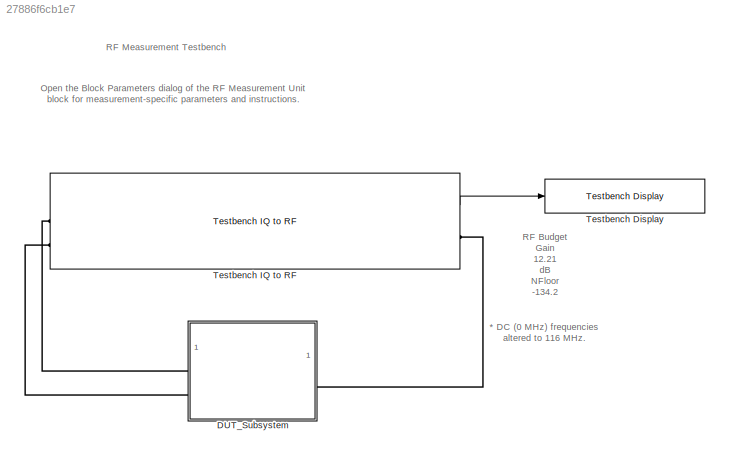
MODEL slx_27886f6cb1e7
KIND model
CONFIG AbsTol = auto
CONFIG EnableMultiTasking = off
CONFIG FixedStep = auto
CONFIG MaxStep = auto
CONFIG MinStep = auto
CONFIG RelTol = 1e-3
CONFIG SampleTimeConstraint = Unconstrained
CONFIG SolverName = FixedStepDiscrete
CONFIG StartTime = 0.0
CONFIG StopTime = inf
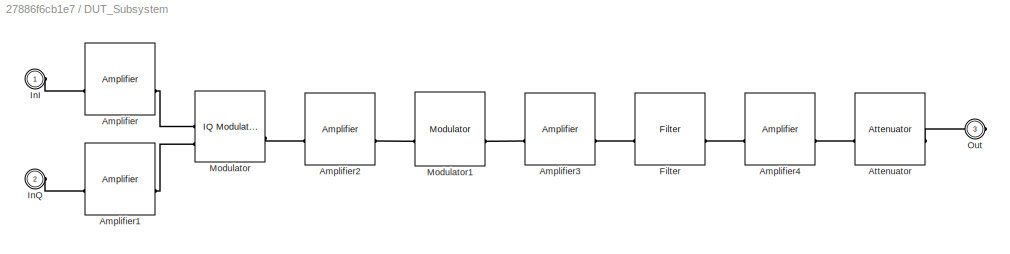
BLOCK [SubSystem] DUT_Subsystem
  LibrarySourceBlock = rfTestbenches_lib/simrfTestbenchIQtoRF/DUT_Subsystem
BLOCK [Reference] DUT_Subsystem/Amplifier  REF=simrfV2elements/Amplifier
  SourceBlock = simrfV2elements/Amplifier
  SourceType = Amplifier
  UserDataPersistent = on
BLOCK [Reference] DUT_Subsystem/Amplifier1  REF=simrfV2elements/Amplifier
  SourceBlock = simrfV2elements/Amplifier
  SourceType = Amplifier
  UserDataPersistent = on
BLOCK [Reference] DUT_Subsystem/Amplifier2  REF=simrfV2elements/Amplifier
  SourceBlock = simrfV2elements/Amplifier
  SourceType = Amplifier
  UserDataPersistent = on
BLOCK [Reference] DUT_Subsystem/Amplifier3  REF=simrfV2elements/Amplifier
  SourceBlock = simrfV2elements/Amplifier
  SourceType = Amplifier
  UserDataPersistent = on
BLOCK [Reference] DUT_Subsystem/Amplifier4  REF=simrfV2elements/Amplifier
  SourceBlock = simrfV2elements/Amplifier
  SourceType = Amplifier
  UserDataPersistent = on
BLOCK [Reference] DUT_Subsystem/Attenuator  REF=simrfV2elements/Attenuator
  SourceBlock = simrfV2elements/Attenuator
  SourceType = Attenuator
BLOCK [Reference] DUT_Subsystem/Filter  REF=simrfV2elements/Filter
  SourceBlock = simrfV2elements/Filter
  SourceType = Filter
  UserDataPersistent = on
BLOCK [PMIOPort] DUT_Subsystem/InI
  Side = Left
BLOCK [PMIOPort] DUT_Subsystem/InQ
  Port = 2
  Side = Left
BLOCK [Reference] DUT_Subsystem/Modulator  REF=simrfV2systems/IQ Modulator
  SourceBlock = simrfV2systems/IQ Modulator
  SourceType = IQ Modulator
BLOCK [Reference] DUT_Subsystem/Modulator1  REF=simrfV2systems/Modulator
  SourceBlock = simrfV2systems/Modulator
  SourceType = Modulator
BLOCK [PMIOPort] DUT_Subsystem/Out
  Port = 3
  Side = Right
BLOCK [Reference] Testbench Display  REF=rfTestbenches_lib/simrfTestbenchIQtoRF/Testbench Display
  SourceBlock = rfTestbenches_lib/simrfTestbenchIQtoRF/Testbench Display
BLOCK [Reference] Testbench IQ to RF  REF=rfTestbenches_lib/Testbench IQ to RF
  SourceBlock = rfTestbenches_lib/Testbench IQ to RF
  SourceType = RF Measurement Unit
  UserDataPersistent = on
ANNOTATION (root): * DC (0 MHz) frequencies altered to 116 MHz.
ANNOTATION (root): RF Budget Gain 12.21 dB NFloor -134.2 dBm/Hz (NF is 27.56 dB) OIP3 22.62 dBm IIP3 10.42 dBm
ANNOTATION (root): Open the Block Parameters dialog of the RF Measurement Unit block for measurement-specific parameters and instructions .
ANNOTATION (root): RF Measurement Testbench
LINE Testbench IQ to RF:1 -> Testbench Display:1
PLINE DUT_Subsystem/Amplifier1:LConn1 -- DUT_Subsystem/InQ:RConn1
PLINE DUT_Subsystem/Amplifier1:RConn1 -- DUT_Subsystem/Modulator:LConn2
PLINE DUT_Subsystem/Amplifier2:LConn1 -- DUT_Subsystem/Modulator:RConn1
PLINE DUT_Subsystem/Amplifier2:RConn1 -- DUT_Subsystem/Modulator1:LConn1
PLINE DUT_Subsystem/Amplifier3:LConn1 -- DUT_Subsystem/Modulator1:RConn1
PLINE DUT_Subsystem/Amplifier3:RConn1 -- DUT_Subsystem/Filter:LConn1
PLINE DUT_Subsystem/Amplifier4:LConn1 -- DUT_Subsystem/Filter:RConn1
PLINE DUT_Subsystem/Amplifier4:RConn1 -- DUT_Subsystem/Attenuator:LConn1
PLINE DUT_Subsystem/Amplifier:LConn1 -- DUT_Subsystem/InI:RConn1
PLINE DUT_Subsystem/Amplifier:RConn1 -- DUT_Subsystem/Modulator:LConn1
PLINE DUT_Subsystem/Attenuator:RConn1 -- DUT_Subsystem/Out:RConn1
PLINE DUT_Subsystem:LConn1 -- Testbench IQ to RF:LConn1
PLINE DUT_Subsystem:LConn2 -- Testbench IQ to RF:LConn2
PLINE DUT_Subsystem:RConn1 -- Testbench IQ to RF:RConn1
